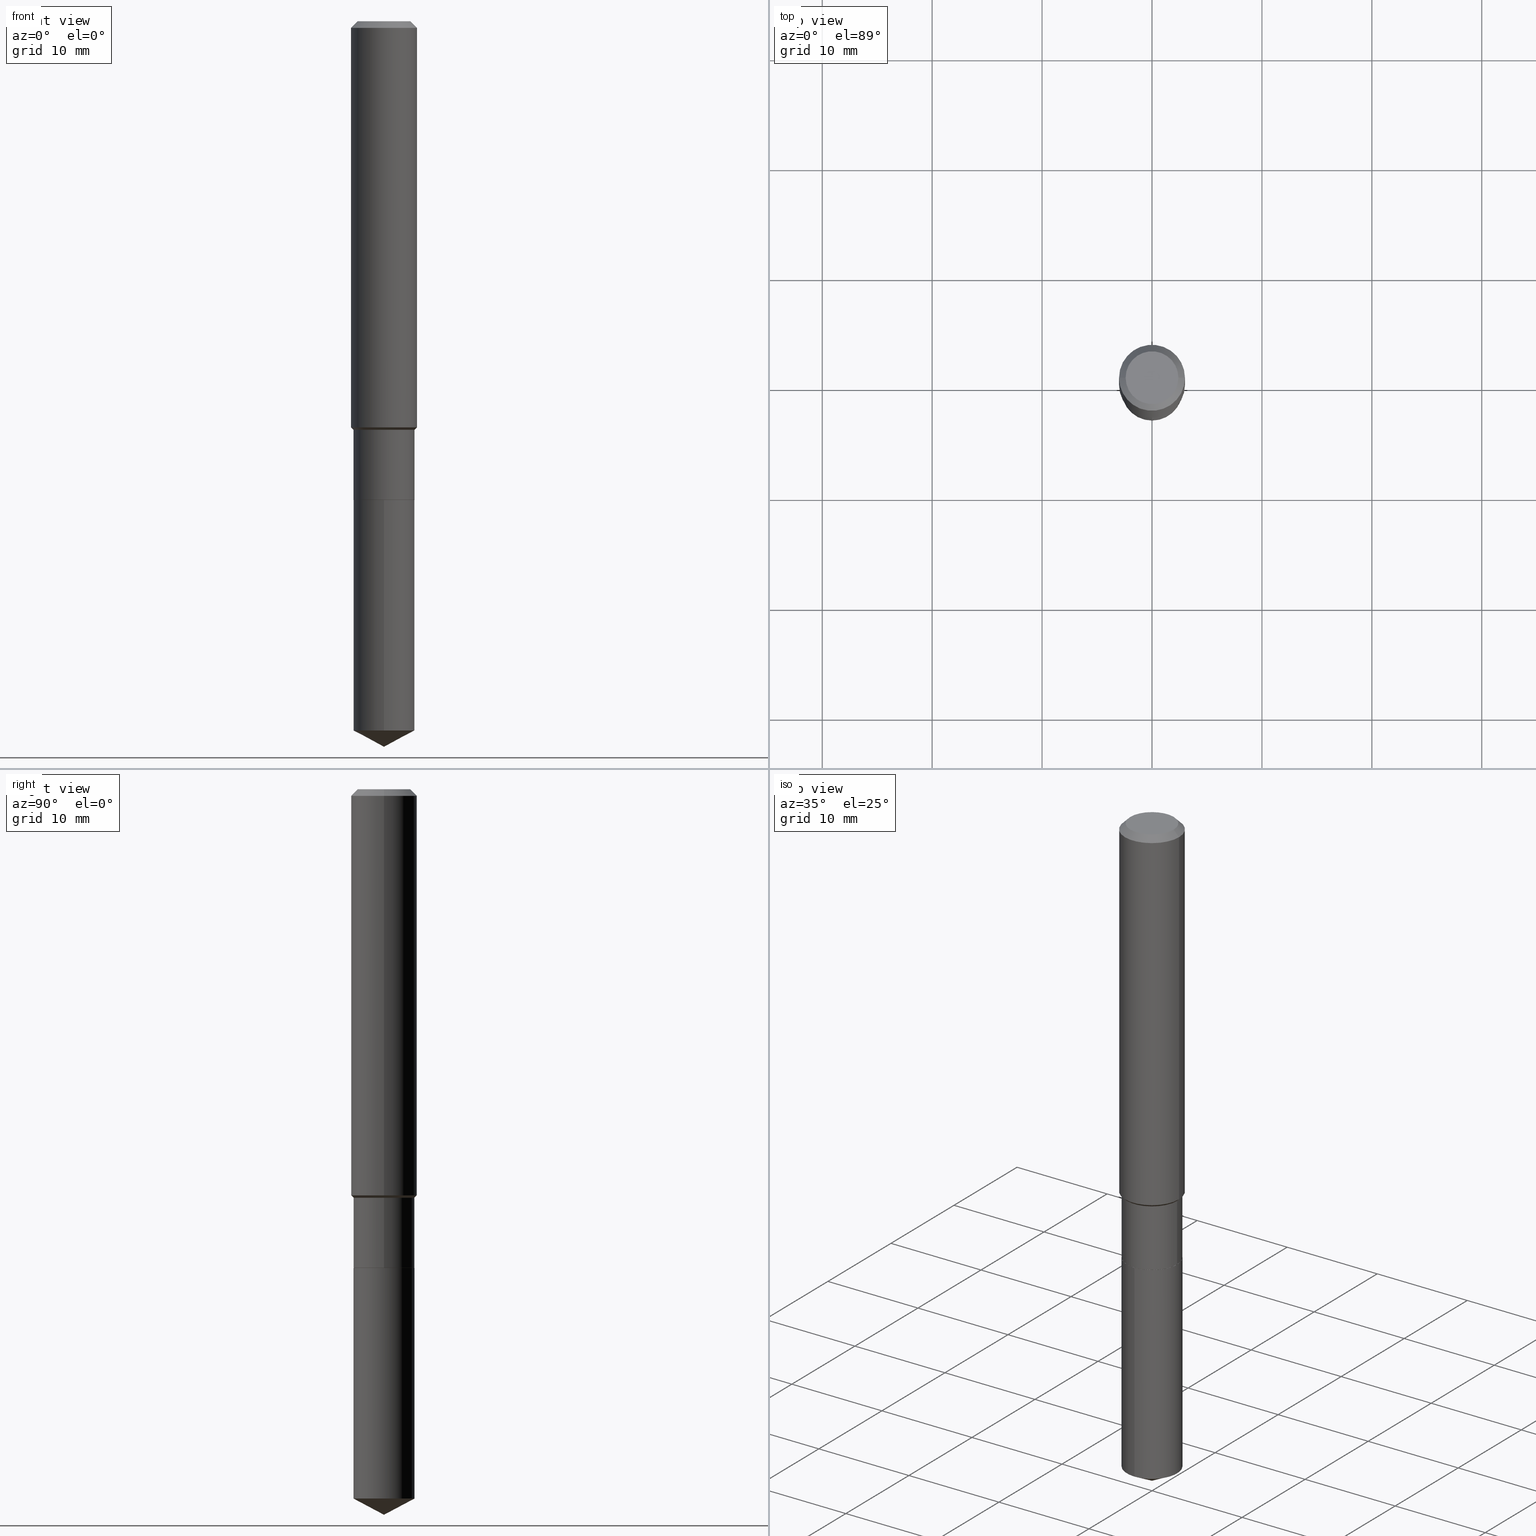
[diagram: canonical four-view strip — front | top / right | iso, engineering-drawing reading convention]
A machine part, canonical four-view strip (front | top / right | iso — engineering-drawing reading convention). The complete STEP part file that produces these views, byte-faithful:
ISO-10303-21;
HEADER;
FILE_DESCRIPTION (( 'STEP AP203' ),
    '1' );
FILE_NAME ('54608.STEP',
    '2024-04-24T15:04:05',
    ( '' ),
    ( '' ),
    'SwSTEP 2.0',
    'SolidWorks 2023',
    '' );
FILE_SCHEMA (( 'CONFIG_CONTROL_DESIGN' ));
ENDSEC;

DATA;
#1 = CONICAL_SURFACE ( 'NONE', #59, 0.1088999999999999968, 0.7853981633972775267 ) ;
#2 = VERTEX_POINT ( 'NONE', #242 ) ;
#3 = EDGE_CURVE ( 'NONE', #178, #109, #97, .T. ) ;
#4 = DIRECTION ( 'NONE',  ( -2.445468806185136877E-29, 3.491481338843145188E-15, 1.000000000000000000 ) ) ;
#5 = EDGE_CURVE ( 'NONE', #270, #300, #191, .T. ) ;
#6 = ORIENTED_EDGE ( 'NONE', *, *, #244, .T. ) ;
#7 = CIRCLE ( 'NONE', #240, 0.1180999999999999966 ) ;
#8 = AXIS2_PLACEMENT_3D ( 'NONE', #412, #384, #194 ) ;
#9 = DIRECTION ( 'NONE',  ( 6.982962677686265922E-15, 1.000000000000000000, -3.491257237834599652E-15 ) ) ;
#10 = ORIENTED_EDGE ( 'NONE', *, *, #232, .T. ) ;
#11 = PERSON_AND_ORGANIZATION ( #235, #380 ) ;
#12 = EDGE_LOOP ( 'NONE', ( #388, #176, #413, #265 ) ) ;
#13 = DIRECTION ( 'NONE',  ( -2.445468806185136597E-29, 3.491481338843145583E-15, 1.000000000000000000 ) ) ;
#14 = VECTOR ( 'NONE', #136, 39.37007874015748143 ) ;
#15 = CONICAL_SURFACE ( 'NONE', #401, 0.1088999999999999968, 0.7853981633972775267 ) ;
#16 = COORDINATED_UNIVERSAL_TIME_OFFSET ( 5, 0, .BEHIND. ) ;
#17 = CARTESIAN_POINT ( 'NONE',  ( 6.354712766743684551E-29, -9.071682806789423886E-15, -2.598399999999999821 ) ) ;
#18 = ADVANCED_FACE ( 'NONE', ( #153 ), #307, .T. ) ;
#19 = APPROVAL_ROLE ( '' ) ;
#20 = CARTESIAN_POINT ( 'NONE',  ( -1.414760311887566167E-46, 2.019902775041730779E-32, 5.785231479172097515E-18 ) ) ;
#21 = CARTESIAN_POINT ( 'NONE',  ( -7.639361169388354664E-16, -0.1094000000000059925, -1.714799999999999436 ) ) ;
#22 = VECTOR ( 'NONE', #162, 39.37007874015748854 ) ;
#23 = CONICAL_SURFACE ( 'NONE', #149, 74.04434902938338325, 1.082104136236485603 ) ;
#24 = CARTESIAN_POINT ( 'NONE',  ( -0.09447999999999998066, 7.009847083995354710E-16, 5.785231479167339697E-18 ) ) ;
#25 = CARTESIAN_POINT ( 'NONE',  ( -0.1093999999999999972, -4.769757224165497309E-15, -1.714299999999999713 ) ) ;
#26 = ORIENTED_EDGE ( 'NONE', *, *, #257, .T. ) ;
#27 = DIMENSIONAL_EXPONENTS ( 1.000000000000000000, 0.000000000000000000, 0.000000000000000000, 0.000000000000000000, 0.000000000000000000, 0.000000000000000000, 0.000000000000000000 ) ;
#28 = DIRECTION ( 'NONE',  ( 1.000000000000000000, -6.982962677686266711E-15, 4.876176775795936353E-29 ) ) ;
#29 = PRODUCT_DEFINITION ( 'UNKNOWN', '', #33, #193 ) ;
#30 = ORIENTED_EDGE ( 'NONE', *, *, #3, .F. ) ;
#31 = DIRECTION ( 'NONE',  ( 1.000000000000000000, -6.982962677686266711E-15, 4.876176775795936353E-29 ) ) ;
#32 = AXIS2_PLACEMENT_3D ( 'NONE', #96, #445, #255 ) ;
#33 = PRODUCT_DEFINITION_FORMATION_WITH_SPECIFIED_SOURCE ( 'ANY', '', #446, .NOT_KNOWN. ) ;
#34 = DIRECTION ( 'NONE',  ( -2.445625295083006978E-29, 3.491257237834600047E-15, 1.000000000000000000 ) ) ;
#35 = CARTESIAN_POINT ( 'NONE',  ( 6.212184812875433221E-29, -8.868984111651468523E-15, -2.540230988176234384 ) ) ;
#36 = EDGE_CURVE ( 'NONE', #332, #348, #7, .T. ) ;
#37 = CONICAL_SURFACE ( 'NONE', #163, 0.1093999999999999695, 0.7853981633974541632 ) ;
#38 = AXIS2_PLACEMENT_3D ( 'NONE', #484, #217, #331 ) ;
#39 = ORIENTED_EDGE ( 'NONE', *, *, #62, .F. ) ;
#40 = LENGTH_MEASURE_WITH_UNIT ( LENGTH_MEASURE( 0.02539999999999999897 ), #116 );
#41 = CC_DESIGN_DATE_AND_TIME_ASSIGNMENT ( #54, #431, ( #142 ) ) ;
#42 = DIRECTION ( 'NONE',  ( 1.000000000000000000, -6.982962677686264344E-15, 0.000000000000000000 ) ) ;
#43 = ORIENTED_EDGE ( 'NONE', *, *, #404, .F. ) ;
#44 = DIRECTION ( 'NONE',  ( -2.445468806185136877E-29, 3.491481338843145188E-15, 1.000000000000000000 ) ) ;
#45 = ORIENTED_EDGE ( 'NONE', *, *, #251, .F. ) ;
#46 = AXIS2_PLACEMENT_3D ( 'NONE', #254, #138, #328 ) ;
#47 = DATE_TIME_ROLE ( 'creation_date' ) ;
#48 = ORIENTED_EDGE ( 'NONE', *, *, #257, .F. ) ;
#49 = ADVANCED_FACE ( 'NONE', ( #477 ), #396, .T. ) ;
#50 = CARTESIAN_POINT ( 'NONE',  ( 5.776197320209326656E-31, -8.246878922347558061E-17, -0.02362000000000013741 ) ) ;
#51 = CALENDAR_DATE ( 2024, 24, 4 ) ;
#52 = EDGE_CURVE ( 'NONE', #105, #261, #283, .T. ) ;
#53 = FACE_OUTER_BOUND ( 'NONE', #345, .T. ) ;
#54 = DATE_AND_TIME ( #86, #135 ) ;
#55 = CARTESIAN_POINT ( 'NONE',  ( 3.556934378596280140E-29, -5.078359607347354252E-15, -1.454499999999999682 ) ) ;
#56 = APPROVAL_DATE_TIME ( #434, #201 ) ;
#57 = DIRECTION ( 'NONE',  ( -2.445625295083006978E-29, 3.491257237834600047E-15, 1.000000000000000000 ) ) ;
#58 = CARTESIAN_POINT ( 'NONE',  ( 0.000000000000000000, 0.000000000000000000, 0.000000000000000000 ) ) ;
#59 = AXIS2_PLACEMENT_3D ( 'NONE', #344, #387, #83 ) ;
#60 = CARTESIAN_POINT ( 'NONE',  ( 6.212184812875433221E-29, -8.868984111651468523E-15, -2.540230988176234384 ) ) ;
#61 = LOCAL_TIME ( 11, 4, 5.000000000000000000, #248 ) ;
#62 = EDGE_CURVE ( 'NONE', #84, #348, #394, .T. ) ;
#63 = DIRECTION ( 'NONE',  ( 1.000000000000000000, -6.982962677686271444E-15, 0.000000000000000000 ) ) ;
#64 = VERTEX_POINT ( 'NONE', #24 ) ;
#65 = DIRECTION ( 'NONE',  ( 1.000000000000000000, -6.982962677686271444E-15, 0.000000000000000000 ) ) ;
#66 = EDGE_CURVE ( 'NONE', #198, #461, #355, .T. ) ;
#67 = DIRECTION ( 'NONE',  ( -2.445625295083006978E-29, 3.491257237834600047E-15, 1.000000000000000000 ) ) ;
#68 = AXIS2_PLACEMENT_3D ( 'NONE', #88, #424, #435 ) ;
#69 = ORIENTED_EDGE ( 'NONE', *, *, #311, .F. ) ;
#70 = AXIS2_PLACEMENT_3D ( 'NONE', #460, #303, #120 ) ;
#71 = DIRECTION ( 'NONE',  ( -6.982962677686265922E-15, -1.000000000000000000, 2.497118824190368439E-15 ) ) ;
#72 = VERTEX_POINT ( 'NONE', #174 ) ;
#73 =( NAMED_UNIT ( * ) PLANE_ANGLE_UNIT ( ) SI_UNIT ( $, .RADIAN. ) );
#74 = ORIENTED_EDGE ( 'NONE', *, *, #397, .F. ) ;
#75 = EDGE_CURVE ( 'NONE', #64, #84, #124, .T. ) ;
#76 = DIRECTION ( 'NONE',  ( 2.445625295083006978E-29, -3.491257237834599652E-15, -1.000000000000000000 ) ) ;
#77 = CIRCLE ( 'NONE', #354, 0.1093999999999999972 ) ;
#78 = EDGE_LOOP ( 'NONE', ( #420, #340, #122 ) ) ;
#79 = DIRECTION ( 'NONE',  ( -2.445468806185136597E-29, 3.491481338843145583E-15, 1.000000000000000000 ) ) ;
#80 = ORIENTED_EDGE ( 'NONE', *, *, #339, .F. ) ;
#81 = DIRECTION ( 'NONE',  ( -6.165590087286829718E-15, -0.8829475928589257672, 0.4694715627858926932 ) ) ;
#82 = ORIENTED_EDGE ( 'NONE', *, *, #157, .T. ) ;
#83 = DIRECTION ( 'NONE',  ( 1.000000000000000000, -6.982962677686264344E-15, 0.000000000000000000 ) ) ;
#84 = VERTEX_POINT ( 'NONE', #207 ) ;
#85 = CIRCLE ( 'NONE', #46, 0.1093999999999999695 ) ;
#86 = CALENDAR_DATE ( 2024, 24, 4 ) ;
#87 = CONICAL_SURFACE ( 'NONE', #440, 74.04434902938338325, 1.082104136236485603 ) ;
#88 = CARTESIAN_POINT ( 'NONE',  ( 4.193489908846271627E-29, -5.987192199848224509E-15, -1.714799999999999658 ) ) ;
#89 = APPROVAL_ROLE ( '' ) ;
#90 = CARTESIAN_POINT ( 'NONE',  ( 0.1093999999999999695, -5.872671611934168353E-15, -1.463199999999999834 ) ) ;
#91 = ADVANCED_FACE ( 'NONE', ( #53 ), #37, .T. ) ;
#92 = CYLINDRICAL_SURFACE ( 'NONE', #125, 0.1093999999999999834 ) ;
#93 = SHAPE_DEFINITION_REPRESENTATION ( #372, #316 ) ;
#94 = CARTESIAN_POINT ( 'NONE',  ( 3.578209957210091410E-29, -5.108735494995289992E-15, -1.463199999999999834 ) ) ;
#95 = FACE_OUTER_BOUND ( 'NONE', #228, .T. ) ;
#96 = CARTESIAN_POINT ( 'NONE',  ( -1.414760311887566167E-46, 2.019902775041730779E-32, 5.785231479172097515E-18 ) ) ;
#97 = CIRCLE ( 'NONE', #301, 0.1088999999999999968 ) ;
#98 = CIRCLE ( 'NONE', #360, 0.1093999999999999972 ) ;
#99 = DIRECTION ( 'NONE',  ( -1.000000000000000000, 6.982962677686266711E-15, 0.000000000000000000 ) ) ;
#100 = ORIENTED_EDGE ( 'NONE', *, *, #36, .T. ) ;
#101 = CARTESIAN_POINT ( 'NONE',  ( 3.578209957210091410E-29, -5.108735494995289992E-15, -1.463199999999999834 ) ) ;
#102 = ORIENTED_EDGE ( 'NONE', *, *, #103, .F. ) ;
#103 = EDGE_CURVE ( 'NONE', #461, #348, #352, .T. ) ;
#104 = CARTESIAN_POINT ( 'NONE',  ( 4.192267174443178826E-29, -5.985446459178803005E-15, -1.714299999999999713 ) ) ;
#105 = VERTEX_POINT ( 'NONE', #17 ) ;
#106 = CLOSED_SHELL ( 'NONE', ( #260, #343, #475, #18, #451 ) ) ;
#107 = CARTESIAN_POINT ( 'NONE',  ( -0.1093999999999999695, -4.331401742073740803E-15, -1.463199999999999834 ) ) ;
#108 = VECTOR ( 'NONE', #239, 39.37007874015748143 ) ;
#109 = VERTEX_POINT ( 'NONE', #243 ) ;
#110 = AXIS2_PLACEMENT_3D ( 'NONE', #465, #161, #317 ) ;
#111 = ORIENTED_EDGE ( 'NONE', *, *, #330, .T. ) ;
#112 = ADVANCED_FACE ( 'NONE', ( #466 ), #209, .F. ) ;
#113 = FACE_OUTER_BOUND ( 'NONE', #117, .T. ) ;
#114 = EDGE_LOOP ( 'NONE', ( #256, #453 ) ) ;
#115 = CC_DESIGN_PERSON_AND_ORGANIZATION_ASSIGNMENT ( #393, #350, ( #33 ) ) ;
#116 =( LENGTH_UNIT ( ) NAMED_UNIT ( * ) SI_UNIT ( $, .METRE. ) );
#117 = EDGE_LOOP ( 'NONE', ( #39, #267, #482, #100 ) ) ;
#118 = CARTESIAN_POINT ( 'NONE',  ( 6.354176072419548755E-29, -9.072451383608331705E-15, -2.598399999999999821 ) ) ;
#119 = VERTEX_POINT ( 'NONE', #322 ) ;
#120 = DIRECTION ( 'NONE',  ( 1.000000000000000000, -6.982962677686264344E-15, 0.000000000000000000 ) ) ;
#121 = EDGE_CURVE ( 'NONE', #444, #439, #132, .T. ) ;
#122 = ORIENTED_EDGE ( 'NONE', *, *, #232, .F. ) ;
#123 = DIRECTION ( 'NONE',  ( 6.273719981627762132E-15, 0.8829475928589292089, 0.4694715627858865870 ) ) ;
#124 = CIRCLE ( 'NONE', #399, 0.09447999999999998066 ) ;
#125 = AXIS2_PLACEMENT_3D ( 'NONE', #171, #13, #128 ) ;
#126 = COORDINATED_UNIVERSAL_TIME_OFFSET ( 5, 0, .BEHIND. ) ;
#127 = LOCAL_TIME ( 11, 4, 5.000000000000000000, #204 ) ;
#128 = DIRECTION ( 'NONE',  ( 1.000000000000000000, -6.982962677686266711E-15, 4.876176775795935793E-29 ) ) ;
#129 = PERSON_AND_ORGANIZATION_ROLE ( 'creator' ) ;
#130 = CARTESIAN_POINT ( 'NONE',  ( 4.193489908846272188E-29, -5.987192199848225298E-15, -1.714799999999999880 ) ) ;
#131 = COORDINATED_UNIVERSAL_TIME_OFFSET ( 5, 0, .BEHIND. ) ;
#132 = LINE ( 'NONE', #21, #14 ) ;
#133 = CIRCLE ( 'NONE', #302, 0.1181000000000001632 ) ;
#134 = PERSON_AND_ORGANIZATION ( #235, #380 ) ;
#135 = LOCAL_TIME ( 11, 4, 5.000000000000000000, #126 ) ;
#136 = DIRECTION ( 'NONE',  ( -2.445625295083006978E-29, 3.491257237834599652E-15, 1.000000000000000000 ) ) ;
#137 = DIRECTION ( 'NONE',  ( -2.445625295083006978E-29, 3.491257237834600047E-15, 1.000000000000000000 ) ) ;
#138 = DIRECTION ( 'NONE',  ( -2.445468806185136597E-29, 3.491481338843145583E-15, 1.000000000000000000 ) ) ;
#139 = ORIENTED_EDGE ( 'NONE', *, *, #5, .T. ) ;
#140 = ADVANCED_FACE ( 'NONE', ( #287 ), #92, .T. ) ;
#141 = CARTESIAN_POINT ( 'NONE',  ( 4.193489908846271627E-29, -5.987192199848224509E-15, -1.714799999999999658 ) ) ;
#142 = SECURITY_CLASSIFICATION ( '', '', #472 ) ;
#143 = EDGE_CURVE ( 'NONE', #178, #119, #389, .T. ) ;
#144 = CYLINDRICAL_SURFACE ( 'NONE', #318, 0.1181000000000000799 ) ;
#145 = EDGE_LOOP ( 'NONE', ( #184, #406, #233, #315 ) ) ;
#146 = MANIFOLD_SOLID_BREP ( 'Body-Move/Copy2[2]', #367 ) ;
#147 = DIRECTION ( 'NONE',  ( -2.445468806185136597E-29, 3.491481338843145583E-15, 1.000000000000000000 ) ) ;
#148 = DIRECTION ( 'NONE',  ( -6.982962677686266711E-15, -1.000000000000000000, 3.541896320645568363E-15 ) ) ;
#149 = AXIS2_PLACEMENT_3D ( 'NONE', #183, #336, #479 ) ;
#150 = DIRECTION ( 'NONE',  ( 1.000000000000000000, -6.982962677686269866E-15, 0.000000000000000000 ) ) ;
#151 = EDGE_LOOP ( 'NONE', ( #368, #222, #218, #238 ) ) ;
#152 = CC_DESIGN_PERSON_AND_ORGANIZATION_ASSIGNMENT ( #246, #474, ( #446 ) ) ;
#153 = FACE_OUTER_BOUND ( 'NONE', #309, .T. ) ;
#154 = CARTESIAN_POINT ( 'NONE',  ( -0.1088999999999999968, -5.213411160605476218E-15, -1.714799999999999880 ) ) ;
#155 = ORIENTED_EDGE ( 'NONE', *, *, #62, .T. ) ;
#156 = CC_DESIGN_SECURITY_CLASSIFICATION ( #142, ( #33 ) ) ;
#157 = EDGE_CURVE ( 'NONE', #2, #439, #173, .T. ) ;
#158 = CARTESIAN_POINT ( 'NONE',  ( 0.1181000000000001632, -5.903047499582104093E-15, -1.454499999999999682 ) ) ;
#159 = ORIENTED_EDGE ( 'NONE', *, *, #416, .F. ) ;
#160 = ORIENTED_EDGE ( 'NONE', *, *, #364, .F. ) ;
#161 = DIRECTION ( 'NONE',  ( 0.000000000000000000, 0.000000000000000000, 1.000000000000000000 ) ) ;
#162 = DIRECTION ( 'NONE',  ( 0.7071067811865455743, -7.319954787623248157E-15, -0.7071067811865493491 ) ) ;
#163 = AXIS2_PLACEMENT_3D ( 'NONE', #94, #473, #319 ) ;
#164 = EDGE_CURVE ( 'NONE', #72, #461, #133, .T. ) ;
#165 = CIRCLE ( 'NONE', #338, 0.1093999999999999972 ) ;
#166 = PERSON_AND_ORGANIZATION ( #235, #380 ) ;
#167 = APPROVAL_PERSON_ORGANIZATION ( #356, #201, #89 ) ;
#168 = CARTESIAN_POINT ( 'NONE',  ( 0.1093999999999999695, -5.872671611934168353E-15, -1.463199999999999834 ) ) ;
#169 = APPLICATION_PROTOCOL_DEFINITION ( 'international standard', 'config_control_design', 1994, #245 ) ;
#170 = DIRECTION ( 'NONE',  ( -2.445468806185136597E-29, 3.491481338843145583E-15, 1.000000000000000000 ) ) ;
#171 = CARTESIAN_POINT ( 'NONE',  ( 0.000000000000000000, 0.000000000000000000, 0.000000000000000000 ) ) ;
#172 = AXIS2_PLACEMENT_3D ( 'NONE', #456, #57, #398 ) ;
#173 = CIRCLE ( 'NONE', #68, 0.1093999999999999972 ) ;
#174 = CARTESIAN_POINT ( 'NONE',  ( -0.1181000000000001632, -4.239208636414675266E-15, -1.454499999999999682 ) ) ;
#175 = CARTESIAN_POINT ( 'NONE',  ( 0.000000000000000000, 0.000000000000000000, 0.000000000000000000 ) ) ;
#176 = ORIENTED_EDGE ( 'NONE', *, *, #425, .T. ) ;
#177 = CARTESIAN_POINT ( 'NONE',  ( 3.578209957210091410E-29, -5.108735494995289992E-15, -1.463199999999999834 ) ) ;
#178 = VERTEX_POINT ( 'NONE', #247 ) ;
#179 = PRODUCT_RELATED_PRODUCT_CATEGORY ( 'detail', '', ( #446 ) ) ;
#180 = CIRCLE ( 'NONE', #186, 0.1093999999999999972 ) ;
#181 = CARTESIAN_POINT ( 'NONE',  ( 5.776197320209326656E-31, -8.246878922347558061E-17, -0.02362000000000013741 ) ) ;
#182 = EDGE_LOOP ( 'NONE', ( #74, #417, #447, #43 ) ) ;
#183 = CARTESIAN_POINT ( 'NONE',  ( -8.993001601675724650E-28, 1.283790052604940387E-13, 36.77167874015748339 ) ) ;
#184 = ORIENTED_EDGE ( 'NONE', *, *, #468, .F. ) ;
#185 = CARTESIAN_POINT ( 'NONE',  ( 4.192267174443178826E-29, -5.985446459178803005E-15, -1.714299999999999713 ) ) ;
#186 = AXIS2_PLACEMENT_3D ( 'NONE', #104, #362, #329 ) ;
#187 = DIRECTION ( 'NONE',  ( -1.000000000000000000, 6.982962677686266711E-15, 0.000000000000000000 ) ) ;
#188 = ORIENTED_EDGE ( 'NONE', *, *, #436, .F. ) ;
#189 = CC_DESIGN_APPROVAL ( #201, ( #142 ) ) ;
#190 = DIRECTION ( 'NONE',  ( -2.445625295083006978E-29, 3.491257237834600047E-15, 1.000000000000000000 ) ) ;
#191 = LINE ( 'NONE', #342, #291 ) ;
#192 = ORIENTED_EDGE ( 'NONE', *, *, #346, .T. ) ;
#193 = DESIGN_CONTEXT ( 'detailed design', #290, 'design' ) ;
#194 = DIRECTION ( 'NONE',  ( 1.000000000000000000, -6.982962677686265922E-15, 4.876176775795935793E-29 ) ) ;
#195 = CIRCLE ( 'NONE', #241, 0.1093999999999999972 ) ;
#196 = ORIENTED_EDGE ( 'NONE', *, *, #66, .T. ) ;
#197 = MECHANICAL_CONTEXT ( 'NONE', #245, 'mechanical' ) ;
#198 = VERTEX_POINT ( 'NONE', #168 ) ;
#199 = PERSON_AND_ORGANIZATION ( #235, #380 ) ;
#200 = DIRECTION ( 'NONE',  ( 1.000000000000000000, -6.982962677686267499E-15, 4.876435884686232796E-29 ) ) ;
#201 = APPROVAL ( #395, 'UNSPECIFIED' ) ;
#202 = DIRECTION ( 'NONE',  ( 0.7071067811865516806, -2.468850131082300448E-15, 0.7071067811865433539 ) ) ;
#203 = VECTOR ( 'NONE', #304, 39.37007874015748143 ) ;
#204 = COORDINATED_UNIVERSAL_TIME_OFFSET ( 5, 0, .BEHIND. ) ;
#205 = DIRECTION ( 'NONE',  ( -2.445468806185136597E-29, 3.491481338843145583E-15, 1.000000000000000000 ) ) ;
#206 = ADVANCED_FACE ( 'NONE', ( #470 ), #15, .T. ) ;
#207 = CARTESIAN_POINT ( 'NONE',  ( 0.09447999999999998066, -7.704367267948737704E-16, 5.785231479177098770E-18 ) ) ;
#208 = CC_DESIGN_DATE_AND_TIME_ASSIGNMENT ( #426, #47, ( #29 ) ) ;
#209 = PLANE ( 'NONE',  #229 ) ;
#210 = VECTOR ( 'NONE', #123, 39.37007874015748143 ) ;
#211 = AXIS2_PLACEMENT_3D ( 'NONE', #58, #170, #323 ) ;
#212 =( GEOMETRIC_REPRESENTATION_CONTEXT ( 3 ) GLOBAL_UNCERTAINTY_ASSIGNED_CONTEXT ( ( #296 ) ) GLOBAL_UNIT_ASSIGNED_CONTEXT ( ( #266, #73, #382 ) ) REPRESENTATION_CONTEXT ( 'NONE', 'WORKASPACE' ) );
#213 = FACE_OUTER_BOUND ( 'NONE', #488, .T. ) ;
#214 = EDGE_LOOP ( 'NONE', ( #6, #139, #45, #159 ) ) ;
#215 = CC_DESIGN_PERSON_AND_ORGANIZATION_ASSIGNMENT ( #199, #129, ( #33 ) ) ;
#216 = CARTESIAN_POINT ( 'NONE',  ( -0.1093999999999999695, -4.769757224165497309E-15, -1.463199999999999834 ) ) ;
#217 = DIRECTION ( 'NONE',  ( -2.445468806185136597E-29, 3.491481338843145583E-15, 1.000000000000000000 ) ) ;
#218 = ORIENTED_EDGE ( 'NONE', *, *, #416, .T. ) ;
#219 = VECTOR ( 'NONE', #455, 39.37007874015748143 ) ;
#220 = CARTESIAN_POINT ( 'NONE',  ( 7.773337529216115094E-16, 0.1093999999999911155, -2.540230988176234828 ) ) ;
#221 = APPROVAL_PERSON_ORGANIZATION ( #276, #226, #19 ) ;
#222 = ORIENTED_EDGE ( 'NONE', *, *, #404, .T. ) ;
#223 = ADVANCED_FACE ( 'NONE', ( #95 ), #480, .T. ) ;
#224 = DIRECTION ( 'NONE',  ( -6.982962677686265922E-15, -1.000000000000000000, 2.497118824190368439E-15 ) ) ;
#225 = ORIENTED_EDGE ( 'NONE', *, *, #397, .T. ) ;
#226 = APPROVAL ( #282, 'UNSPECIFIED' ) ;
#227 = DIRECTION ( 'NONE',  ( 2.445468806185136597E-29, -3.491481338843145583E-15, -1.000000000000000000 ) ) ;
#228 = EDGE_LOOP ( 'NONE', ( #312, #273, #48, #102 ) ) ;
#229 = AXIS2_PLACEMENT_3D ( 'NONE', #462, #325, #358 ) ;
#230 = AXIS2_PLACEMENT_3D ( 'NONE', #289, #438, #99 ) ;
#231 = LINE ( 'NONE', #337, #108 ) ;
#232 = EDGE_CURVE ( 'NONE', #261, #444, #165, .T. ) ;
#233 = ORIENTED_EDGE ( 'NONE', *, *, #103, .T. ) ;
#234 = CARTESIAN_POINT ( 'NONE',  ( -8.993001601675724650E-28, 1.283790052604940387E-13, 36.77167874015748339 ) ) ;
#235 = PERSON ( 'UNSPECIFIED', 'UNSPECIFIED', 'UNSPECIFIED', ('UNSPECIFIED'), ('UNSPECIFIED'), ('UNSPECIFIED') ) ;
#236 = ORIENTED_EDGE ( 'NONE', *, *, #320, .F. ) ;
#237 = CARTESIAN_POINT ( 'NONE',  ( 0.1093999999999999834, -7.639361169388774732E-16, 5.334537392720753208E-30 ) ) ;
#238 = ORIENTED_EDGE ( 'NONE', *, *, #346, .F. ) ;
#239 = DIRECTION ( 'NONE',  ( -2.445468806185136877E-29, 3.491481338843145188E-15, 1.000000000000000000 ) ) ;
#240 = AXIS2_PLACEMENT_3D ( 'NONE', #50, #253, #250 ) ;
#241 = AXIS2_PLACEMENT_3D ( 'NONE', #295, #34, #71 ) ;
#242 = CARTESIAN_POINT ( 'NONE',  ( 7.773337529216117066E-16, 0.1093999999999940020, -1.714799999999999880 ) ) ;
#243 = CARTESIAN_POINT ( 'NONE',  ( -0.1088999999999999968, -5.210761933431365017E-15, -1.714799999999999880 ) ) ;
#244 = EDGE_CURVE ( 'NONE', #119, #270, #180, .T. ) ;
#245 = APPLICATION_CONTEXT ( 'configuration controlled 3d designs of mechanical parts and assemblies' ) ;
#246 = PERSON_AND_ORGANIZATION ( #235, #380 ) ;
#247 = CARTESIAN_POINT ( 'NONE',  ( 0.1088999999999999968, -6.747636835448259862E-15, -1.714799999999999880 ) ) ;
#248 = COORDINATED_UNIVERSAL_TIME_OFFSET ( 5, 0, .BEHIND. ) ;
#249 = DIRECTION ( 'NONE',  ( 1.000000000000000000, -6.982962677686264344E-15, 0.000000000000000000 ) ) ;
#250 = DIRECTION ( 'NONE',  ( 1.000000000000000000, -6.982962677686266711E-15, 0.000000000000000000 ) ) ;
#251 = EDGE_CURVE ( 'NONE', #198, #300, #448, .T. ) ;
#252 = APPROVAL_DATE_TIME ( #313, #226 ) ;
#253 = DIRECTION ( 'NONE',  ( -2.445468806185136597E-29, 3.491481338843145583E-15, 1.000000000000000000 ) ) ;
#254 = CARTESIAN_POINT ( 'NONE',  ( 3.578209957210091410E-29, -5.108735494995289992E-15, -1.463199999999999834 ) ) ;
#255 = DIRECTION ( 'NONE',  ( 1.000000000000000000, -6.982962677686267499E-15, 4.876435884686232796E-29 ) ) ;
#256 = ORIENTED_EDGE ( 'NONE', *, *, #75, .T. ) ;
#257 = EDGE_CURVE ( 'NONE', #348, #332, #415, .T. ) ;
#258 = DIRECTION ( 'NONE',  ( -6.982962677686265922E-15, -1.000000000000000000, 4.994237648380736877E-15 ) ) ;
#259 = CARTESIAN_POINT ( 'NONE',  ( 0.000000000000000000, 0.000000000000000000, 0.000000000000000000 ) ) ;
#260 = ADVANCED_FACE ( 'NONE', ( #408 ), #334, .T. ) ;
#261 = VERTEX_POINT ( 'NONE', #220 ) ;
#262 = DIRECTION ( 'NONE',  ( -2.445625295083006978E-29, 3.491257237834600047E-15, 1.000000000000000000 ) ) ;
#263 = ORIENTED_EDGE ( 'NONE', *, *, #66, .F. ) ;
#264 = CARTESIAN_POINT ( 'NONE',  ( 4.193489908846271627E-29, -5.987192199848224509E-15, -1.714799999999999658 ) ) ;
#265 = ORIENTED_EDGE ( 'NONE', *, *, #121, .F. ) ;
#266 =( CONVERSION_BASED_UNIT ( 'INCH', #40 ) LENGTH_UNIT ( ) NAMED_UNIT ( #27 ) );
#267 = ORIENTED_EDGE ( 'NONE', *, *, #75, .F. ) ;
#268 = AXIS2_PLACEMENT_3D ( 'NONE', #177, #147, #63 ) ;
#269 = FACE_OUTER_BOUND ( 'NONE', #371, .T. ) ;
#270 = VERTEX_POINT ( 'NONE', #25 ) ;
#271 = AXIS2_PLACEMENT_3D ( 'NONE', #310, #227, #187 ) ;
#272 = LINE ( 'NONE', #237, #308 ) ;
#273 = ORIENTED_EDGE ( 'NONE', *, *, #468, .T. ) ;
#274 = PLANE ( 'NONE',  #8 ) ;
#275 = ORIENTED_EDGE ( 'NONE', *, *, #377, .F. ) ;
#276 = PERSON_AND_ORGANIZATION ( #235, #380 ) ;
#277 = AXIS2_PLACEMENT_3D ( 'NONE', #141, #67, #224 ) ;
#278 = DIRECTION ( 'NONE',  ( 0.7071067811864267805, -2.468850131080992517E-15, 0.7071067811866682540 ) ) ;
#279 = CC_DESIGN_APPROVAL ( #226, ( #29 ) ) ;
#280 = APPROVAL_DATE_TIME ( #469, #349 ) ;
#281 = CARTESIAN_POINT ( 'NONE',  ( 0.1088999999999999968, -6.747636835448259862E-15, -1.714799999999999880 ) ) ;
#282 = APPROVAL_STATUS ( 'not_yet_approved' ) ;
#283 = LINE ( 'NONE', #285, #210 ) ;
#284 = CALENDAR_DATE ( 2024, 24, 4 ) ;
#285 = CARTESIAN_POINT ( 'NONE',  ( 6.354717472919389250E-29, -9.071682806789427041E-15, -2.598399999999999821 ) ) ;
#286 = CALENDAR_DATE ( 2024, 24, 4 ) ;
#287 = FACE_OUTER_BOUND ( 'NONE', #214, .T. ) ;
#288 = DIRECTION ( 'NONE',  ( -2.445468806185136597E-29, 3.491481338843145583E-15, 1.000000000000000000 ) ) ;
#289 = CARTESIAN_POINT ( 'NONE',  ( 5.776197320209326656E-31, -8.246878922347558061E-17, -0.02362000000000013741 ) ) ;
#290 = APPLICATION_CONTEXT ( 'configuration controlled 3d designs of mechanical parts and assemblies' ) ;
#291 = VECTOR ( 'NONE', #4, 39.37007874015748143 ) ;
#292 = ORIENTED_EDGE ( 'NONE', *, *, #3, .T. ) ;
#293 = CIRCLE ( 'NONE', #32, 0.09447999999999998066 ) ;
#294 = CC_DESIGN_PERSON_AND_ORGANIZATION_ASSIGNMENT ( #11, #423, ( #142 ) ) ;
#295 = CARTESIAN_POINT ( 'NONE',  ( 4.193489908846271627E-29, -5.987192199848224509E-15, -1.714799999999999658 ) ) ;
#296 = UNCERTAINTY_MEASURE_WITH_UNIT (LENGTH_MEASURE( 1.000000000000000082E-05 ), #266, 'distance_accuracy_value', 'NONE');
#297 = FACE_OUTER_BOUND ( 'NONE', #376, .T. ) ;
#298 = EDGE_LOOP ( 'NONE', ( #188, #383, #275 ) ) ;
#299 = LINE ( 'NONE', #373, #326 ) ;
#300 = VERTEX_POINT ( 'NONE', #216 ) ;
#301 = AXIS2_PLACEMENT_3D ( 'NONE', #305, #381, #42 ) ;
#302 = AXIS2_PLACEMENT_3D ( 'NONE', #55, #433, #427 ) ;
#303 = DIRECTION ( 'NONE',  ( -2.445468806185136597E-29, 3.491481338843145583E-15, 1.000000000000000000 ) ) ;
#304 = DIRECTION ( 'NONE',  ( -0.7071067811864267805, 7.493145998869918709E-15, 0.7071067811866682540 ) ) ;
#305 = CARTESIAN_POINT ( 'NONE',  ( 4.193489908846272188E-29, -5.987192199848225298E-15, -1.714799999999999880 ) ) ;
#306 = LINE ( 'NONE', #450, #219 ) ;
#307 = CYLINDRICAL_SURFACE ( 'NONE', #172, 0.1093999999999999972 ) ;
#308 = VECTOR ( 'NONE', #44, 39.37007874015748143 ) ;
#309 = EDGE_LOOP ( 'NONE', ( #365, #10, #410, #442 ) ) ;
#310 = CARTESIAN_POINT ( 'NONE',  ( 5.776197320209326656E-31, -8.246878922347558061E-17, -0.02362000000000013741 ) ) ;
#311 = EDGE_CURVE ( 'NONE', #461, #72, #369, .T. ) ;
#312 = ORIENTED_EDGE ( 'NONE', *, *, #311, .T. ) ;
#313 = DATE_AND_TIME ( #51, #403 ) ;
#314 = ADVANCED_FACE ( 'NONE', ( #363 ), #144, .T. ) ;
#315 = ORIENTED_EDGE ( 'NONE', *, *, #36, .F. ) ;
#316 = ADVANCED_BREP_SHAPE_REPRESENTATION ( '54608', ( #379, #146, #110 ), #212 ) ;
#317 = DIRECTION ( 'NONE',  ( 1.000000000000000000, 0.000000000000000000, 0.000000000000000000 ) ) ;
#318 = AXIS2_PLACEMENT_3D ( 'NONE', #175, #400, #28 ) ;
#319 = DIRECTION ( 'NONE',  ( 1.000000000000000000, -6.982962677686271444E-15, 0.000000000000000000 ) ) ;
#320 = EDGE_CURVE ( 'NONE', #84, #64, #293, .T. ) ;
#321 = APPROVAL_STATUS ( 'not_yet_approved' ) ;
#322 = CARTESIAN_POINT ( 'NONE',  ( 0.1093999999999999972, -6.749382576117681366E-15, -1.714299999999999713 ) ) ;
#323 = DIRECTION ( 'NONE',  ( 1.000000000000000000, -6.982962677686266711E-15, 4.876176775795935793E-29 ) ) ;
#324 = APPROVAL_ROLE ( '' ) ;
#325 = DIRECTION ( 'NONE',  ( 2.438088387897960049E-29, -3.491481338843145188E-15, -1.000000000000000000 ) ) ;
#326 = VECTOR ( 'NONE', #478, 39.37007874015748854 ) ;
#327 = CONICAL_SURFACE ( 'NONE', #271, 0.1180999999999999966, 0.7853981633974456145 ) ;
#328 = DIRECTION ( 'NONE',  ( 1.000000000000000000, -6.982962677686271444E-15, 0.000000000000000000 ) ) ;
#329 = DIRECTION ( 'NONE',  ( 1.000000000000000000, -6.982962677686269866E-15, 0.000000000000000000 ) ) ;
#330 = EDGE_CURVE ( 'NONE', #439, #2, #195, .T. ) ;
#331 = DIRECTION ( 'NONE',  ( 1.000000000000000000, -6.982962677686263555E-15, 0.000000000000000000 ) ) ;
#332 = VERTEX_POINT ( 'NONE', #405 ) ;
#333 = AXIS2_PLACEMENT_3D ( 'NONE', #101, #366, #65 ) ;
#334 = CYLINDRICAL_SURFACE ( 'NONE', #277, 0.1093999999999999972 ) ;
#335 = ADVANCED_FACE ( 'NONE', ( #297 ), #432, .T. ) ;
#336 = DIRECTION ( 'NONE',  ( -2.445625295083006978E-29, 3.491257237834600047E-15, 1.000000000000000000 ) ) ;
#337 = CARTESIAN_POINT ( 'NONE',  ( -0.1181000000000000799, 8.391509709326788873E-16, -5.809262341591047988E-30 ) ) ;
#338 = AXIS2_PLACEMENT_3D ( 'NONE', #60, #262, #258 ) ;
#339 = EDGE_CURVE ( 'NONE', #300, #72, #443, .T. ) ;
#340 = ORIENTED_EDGE ( 'NONE', *, *, #436, .T. ) ;
#341 = CARTESIAN_POINT ( 'NONE',  ( -7.639361169388152518E-16, -0.1094000000000088374, -2.540230988176233495 ) ) ;
#342 = CARTESIAN_POINT ( 'NONE',  ( -0.1093999999999999834, 7.773337529215494852E-16, -5.381314988738866015E-30 ) ) ;
#343 = ADVANCED_FACE ( 'NONE', ( #407 ), #23, .T. ) ;
#344 = CARTESIAN_POINT ( 'NONE',  ( 4.193489908846272188E-29, -5.987192199848225298E-15, -1.714799999999999880 ) ) ;
#345 = EDGE_LOOP ( 'NONE', ( #80, #192, #196, #374 ) ) ;
#346 = EDGE_CURVE ( 'NONE', #300, #198, #85, .T. ) ;
#347 = LINE ( 'NONE', #118, #422 ) ;
#348 = VERTEX_POINT ( 'NONE', #487 ) ;
#349 = APPROVAL ( #321, 'UNSPECIFIED' ) ;
#350 = PERSON_AND_ORGANIZATION_ROLE ( 'design_supplier' ) ;
#351 = ORIENTED_EDGE ( 'NONE', *, *, #143, .F. ) ;
#352 = LINE ( 'NONE', #357, #463 ) ;
#353 = CALENDAR_DATE ( 2024, 24, 4 ) ;
#354 = AXIS2_PLACEMENT_3D ( 'NONE', #185, #79, #150 ) ;
#355 = LINE ( 'NONE', #90, #421 ) ;
#356 = PERSON_AND_ORGANIZATION ( #235, #380 ) ;
#357 = CARTESIAN_POINT ( 'NONE',  ( 0.1181000000000000799, -8.246878922347486570E-16, 5.758764772215004644E-30 ) ) ;
#358 = DIRECTION ( 'NONE',  ( -1.000000000000000000, 6.982962677686265922E-15, -4.876176775795935793E-29 ) ) ;
#359 = CARTESIAN_POINT ( 'NONE',  ( 0.1180999999999999966, -8.926936027602933910E-16, -0.02362000000000013741 ) ) ;
#360 = AXIS2_PLACEMENT_3D ( 'NONE', #35, #137, #437 ) ;
#361 = CC_DESIGN_APPROVAL ( #349, ( #33 ) ) ;
#362 = DIRECTION ( 'NONE',  ( -2.445468806185136597E-29, 3.491481338843145583E-15, 1.000000000000000000 ) ) ;
#363 = FACE_OUTER_BOUND ( 'NONE', #145, .T. ) ;
#364 = EDGE_CURVE ( 'NONE', #64, #332, #299, .T. ) ;
#365 = ORIENTED_EDGE ( 'NONE', *, *, #425, .F. ) ;
#366 = DIRECTION ( 'NONE',  ( -2.445468806185136597E-29, 3.491481338843145583E-15, 1.000000000000000000 ) ) ;
#367 = CLOSED_SHELL ( 'NONE', ( #206, #391, #223, #335, #140, #49, #91, #314, #471, #112, #428, #454 ) ) ;
#368 = ORIENTED_EDGE ( 'NONE', *, *, #5, .F. ) ;
#369 = CIRCLE ( 'NONE', #38, 0.1181000000000001632 ) ;
#370 = DIRECTION ( 'NONE',  ( 1.000000000000000000, -6.982962677686266711E-15, 0.000000000000000000 ) ) ;
#371 = EDGE_LOOP ( 'NONE', ( #111, #82 ) ) ;
#372 = PRODUCT_DEFINITION_SHAPE ( 'NONE', 'NONE',  #29 ) ;
#373 = CARTESIAN_POINT ( 'NONE',  ( -0.1180999999999999966, 7.422191030112725094E-16, -0.02362000000000013741 ) ) ;
#374 = ORIENTED_EDGE ( 'NONE', *, *, #164, .F. ) ;
#375 = PLANE ( 'NONE',  #481 ) ;
#376 = EDGE_LOOP ( 'NONE', ( #402, #385, #69, #263 ) ) ;
#377 = EDGE_CURVE ( 'NONE', #444, #261, #98, .T. ) ;
#378 = FACE_OUTER_BOUND ( 'NONE', #78, .T. ) ;
#379 = MANIFOLD_SOLID_BREP ( 'Body-Move/Copy2[1]', #106 ) ;
#380 = ORGANIZATION ( 'UNSPECIFIED', 'UNSPECIFIED', '' ) ;
#381 = DIRECTION ( 'NONE',  ( -2.445468806185136597E-29, 3.491481338843145583E-15, 1.000000000000000000 ) ) ;
#382 =( NAMED_UNIT ( * ) SI_UNIT ( $, .STERADIAN. ) SOLID_ANGLE_UNIT ( ) );
#383 = ORIENTED_EDGE ( 'NONE', *, *, #52, .T. ) ;
#384 = DIRECTION ( 'NONE',  ( -2.438088387897960049E-29, 3.491481338843145188E-15, 1.000000000000000000 ) ) ;
#385 = ORIENTED_EDGE ( 'NONE', *, *, #339, .T. ) ;
#386 = CONICAL_SURFACE ( 'NONE', #230, 0.1180999999999999966, 0.7853981633974456145 ) ;
#387 = DIRECTION ( 'NONE',  ( -2.445468806185136597E-29, 3.491481338843145583E-15, 1.000000000000000000 ) ) ;
#388 = ORIENTED_EDGE ( 'NONE', *, *, #377, .T. ) ;
#389 = LINE ( 'NONE', #281, #414 ) ;
#390 = APPLICATION_PROTOCOL_DEFINITION ( 'international standard', 'config_control_design', 1994, #290 ) ;
#391 = ADVANCED_FACE ( 'NONE', ( #213 ), #386, .T. ) ;
#392 = DIRECTION ( 'NONE',  ( -2.445468806185136877E-29, 3.491481338843145188E-15, 1.000000000000000000 ) ) ;
#393 = PERSON_AND_ORGANIZATION ( #235, #380 ) ;
#394 = LINE ( 'NONE', #359, #22 ) ;
#395 = APPROVAL_STATUS ( 'not_yet_approved' ) ;
#396 = CYLINDRICAL_SURFACE ( 'NONE', #211, 0.1093999999999999834 ) ;
#397 = EDGE_CURVE ( 'NONE', #109, #270, #458, .T. ) ;
#398 = DIRECTION ( 'NONE',  ( -6.982962677686265922E-15, -1.000000000000000000, 2.497118824190368439E-15 ) ) ;
#399 = AXIS2_PLACEMENT_3D ( 'NONE', #20, #205, #200 ) ;
#400 = DIRECTION ( 'NONE',  ( -2.445468806185136597E-29, 3.491481338843145583E-15, 1.000000000000000000 ) ) ;
#401 = AXIS2_PLACEMENT_3D ( 'NONE', #130, #430, #249 ) ;
#402 = ORIENTED_EDGE ( 'NONE', *, *, #251, .T. ) ;
#403 = LOCAL_TIME ( 11, 4, 5.000000000000000000, #16 ) ;
#404 = EDGE_CURVE ( 'NONE', #270, #119, #77, .T. ) ;
#405 = CARTESIAN_POINT ( 'NONE',  ( -0.1180999999999999966, -1.741263227352735474E-15, -0.02362000000000013741 ) ) ;
#406 = ORIENTED_EDGE ( 'NONE', *, *, #164, .T. ) ;
#407 = FACE_OUTER_BOUND ( 'NONE', #298, .T. ) ;
#408 = FACE_OUTER_BOUND ( 'NONE', #12, .T. ) ;
#409 = DIRECTION ( 'NONE',  ( -2.445468806185136597E-29, 3.491481338843145583E-15, 1.000000000000000000 ) ) ;
#410 = ORIENTED_EDGE ( 'NONE', *, *, #121, .T. ) ;
#411 = EDGE_LOOP ( 'NONE', ( #30, #419 ) ) ;
#412 = CARTESIAN_POINT ( 'NONE',  ( 1.189614977930268288E-29, -1.028891207086335600E-14, -1.714799999999999880 ) ) ;
#413 = ORIENTED_EDGE ( 'NONE', *, *, #330, .F. ) ;
#414 = VECTOR ( 'NONE', #278, 39.37007874015748143 ) ;
#415 = CIRCLE ( 'NONE', #464, 0.1180999999999999966 ) ;
#416 = EDGE_CURVE ( 'NONE', #119, #198, #272, .T. ) ;
#417 = ORIENTED_EDGE ( 'NONE', *, *, #486, .T. ) ;
#418 = FACE_OUTER_BOUND ( 'NONE', #182, .T. ) ;
#419 = ORIENTED_EDGE ( 'NONE', *, *, #486, .F. ) ;
#420 = ORIENTED_EDGE ( 'NONE', *, *, #52, .F. ) ;
#421 = VECTOR ( 'NONE', #202, 39.37007874015748143 ) ;
#422 = VECTOR ( 'NONE', #81, 39.37007874015748854 ) ;
#423 = PERSON_AND_ORGANIZATION_ROLE ( 'classification_officer' ) ;
#424 = DIRECTION ( 'NONE',  ( -2.445625295083006978E-29, 3.491257237834600047E-15, 1.000000000000000000 ) ) ;
#425 = EDGE_CURVE ( 'NONE', #261, #2, #306, .T. ) ;
#426 = DATE_AND_TIME ( #353, #61 ) ;
#427 = DIRECTION ( 'NONE',  ( 1.000000000000000000, -6.982962677686263555E-15, 0.000000000000000000 ) ) ;
#428 = ADVANCED_FACE ( 'NONE', ( #452 ), #274, .F. ) ;
#429 = PERSON_AND_ORGANIZATION_ROLE ( 'creator' ) ;
#430 = DIRECTION ( 'NONE',  ( -2.445468806185136597E-29, 3.491481338843145583E-15, 1.000000000000000000 ) ) ;
#431 = DATE_TIME_ROLE ( 'classification_date' ) ;
#432 = CONICAL_SURFACE ( 'NONE', #268, 0.1093999999999999695, 0.7853981633974541632 ) ;
#433 = DIRECTION ( 'NONE',  ( -2.445468806185136597E-29, 3.491481338843145583E-15, 1.000000000000000000 ) ) ;
#434 = DATE_AND_TIME ( #284, #483 ) ;
#435 = DIRECTION ( 'NONE',  ( -6.982962677686265922E-15, -1.000000000000000000, 2.497118824190368439E-15 ) ) ;
#436 = EDGE_CURVE ( 'NONE', #105, #444, #347, .T. ) ;
#437 = DIRECTION ( 'NONE',  ( -6.982962677686265922E-15, -1.000000000000000000, 4.994237648380736877E-15 ) ) ;
#438 = DIRECTION ( 'NONE',  ( 2.445468806185136597E-29, -3.491481338843145583E-15, -1.000000000000000000 ) ) ;
#439 = VERTEX_POINT ( 'NONE', #490 ) ;
#440 = AXIS2_PLACEMENT_3D ( 'NONE', #234, #190, #148 ) ;
#441 = DIRECTION ( 'NONE',  ( -0.7071067811865516806, 7.493145998870369937E-15, 0.7071067811865433539 ) ) ;
#442 = ORIENTED_EDGE ( 'NONE', *, *, #157, .F. ) ;
#443 = LINE ( 'NONE', #107, #476 ) ;
#444 = VERTEX_POINT ( 'NONE', #341 ) ;
#445 = DIRECTION ( 'NONE',  ( -2.445468806185136597E-29, 3.491481338843145583E-15, 1.000000000000000000 ) ) ;
#446 = PRODUCT ( '54608', '54608', '', ( #197 ) ) ;
#447 = ORIENTED_EDGE ( 'NONE', *, *, #143, .T. ) ;
#448 = CIRCLE ( 'NONE', #333, 0.1093999999999999695 ) ;
#449 = APPROVAL_PERSON_ORGANIZATION ( #166, #349, #324 ) ;
#450 = CARTESIAN_POINT ( 'NONE',  ( 7.773337529215914920E-16, 0.1093999999999940020, -1.714799999999999880 ) ) ;
#451 = ADVANCED_FACE ( 'NONE', ( #269 ), #375, .F. ) ;
#452 = FACE_OUTER_BOUND ( 'NONE', #411, .T. ) ;
#453 = ORIENTED_EDGE ( 'NONE', *, *, #320, .T. ) ;
#454 = ADVANCED_FACE ( 'NONE', ( #418 ), #1, .T. ) ;
#455 = DIRECTION ( 'NONE',  ( -2.445625295083006978E-29, 3.491257237834599652E-15, 1.000000000000000000 ) ) ;
#456 = CARTESIAN_POINT ( 'NONE',  ( 4.193489908846271627E-29, -5.987192199848224509E-15, -1.714799999999999658 ) ) ;
#457 = AXIS2_PLACEMENT_3D ( 'NONE', #259, #409, #31 ) ;
#458 = LINE ( 'NONE', #154, #203 ) ;
#459 = ORIENTED_EDGE ( 'NONE', *, *, #244, .F. ) ;
#460 = CARTESIAN_POINT ( 'NONE',  ( 4.193489908846272188E-29, -5.987192199848225298E-15, -1.714799999999999880 ) ) ;
#461 = VERTEX_POINT ( 'NONE', #158 ) ;
#462 = CARTESIAN_POINT ( 'NONE',  ( -7.073801559437830836E-47, 1.009951387520865390E-32, 2.892615739586048757E-18 ) ) ;
#463 = VECTOR ( 'NONE', #392, 39.37007874015748143 ) ;
#464 = AXIS2_PLACEMENT_3D ( 'NONE', #181, #288, #370 ) ;
#465 = CARTESIAN_POINT ( 'NONE',  ( 0.000000000000000000, 0.000000000000000000, 0.000000000000000000 ) ) ;
#466 = FACE_OUTER_BOUND ( 'NONE', #114, .T. ) ;
#467 = CIRCLE ( 'NONE', #70, 0.1088999999999999968 ) ;
#468 = EDGE_CURVE ( 'NONE', #72, #332, #231, .T. ) ;
#469 = DATE_AND_TIME ( #286, #127 ) ;
#470 = FACE_OUTER_BOUND ( 'NONE', #485, .T. ) ;
#471 = ADVANCED_FACE ( 'NONE', ( #113 ), #327, .T. ) ;
#472 = SECURITY_CLASSIFICATION_LEVEL ( 'unclassified' ) ;
#473 = DIRECTION ( 'NONE',  ( -2.445468806185136597E-29, 3.491481338843145583E-15, 1.000000000000000000 ) ) ;
#474 = PERSON_AND_ORGANIZATION_ROLE ( 'design_owner' ) ;
#475 = ADVANCED_FACE ( 'NONE', ( #378 ), #87, .T. ) ;
#476 = VECTOR ( 'NONE', #441, 39.37007874015748143 ) ;
#477 = FACE_OUTER_BOUND ( 'NONE', #151, .T. ) ;
#478 = DIRECTION ( 'NONE',  ( -0.7071067811865455743, 2.468850131082236945E-15, -0.7071067811865493491 ) ) ;
#479 = DIRECTION ( 'NONE',  ( -6.982962677686266711E-15, -1.000000000000000000, 3.541896320645568363E-15 ) ) ;
#480 = CYLINDRICAL_SURFACE ( 'NONE', #457, 0.1181000000000000799 ) ;
#481 = AXIS2_PLACEMENT_3D ( 'NONE', #264, #76, #9 ) ;
#482 = ORIENTED_EDGE ( 'NONE', *, *, #364, .T. ) ;
#483 = LOCAL_TIME ( 11, 4, 5.000000000000000000, #131 ) ;
#484 = CARTESIAN_POINT ( 'NONE',  ( 3.556934378596280140E-29, -5.078359607347354252E-15, -1.454499999999999682 ) ) ;
#485 = EDGE_LOOP ( 'NONE', ( #292, #225, #459, #351 ) ) ;
#486 = EDGE_CURVE ( 'NONE', #109, #178, #467, .T. ) ;
#487 = CARTESIAN_POINT ( 'NONE',  ( 0.1180999999999999966, -9.071566814582237199E-16, -0.02362000000000013741 ) ) ;
#488 = EDGE_LOOP ( 'NONE', ( #236, #155, #26, #160 ) ) ;
#489 = CC_DESIGN_PERSON_AND_ORGANIZATION_ASSIGNMENT ( #134, #429, ( #29 ) ) ;
#490 = CARTESIAN_POINT ( 'NONE',  ( -7.639361169388354664E-16, -0.1094000000000059925, -1.714799999999999436 ) ) ;
ENDSEC;
END-ISO-10303-21;
